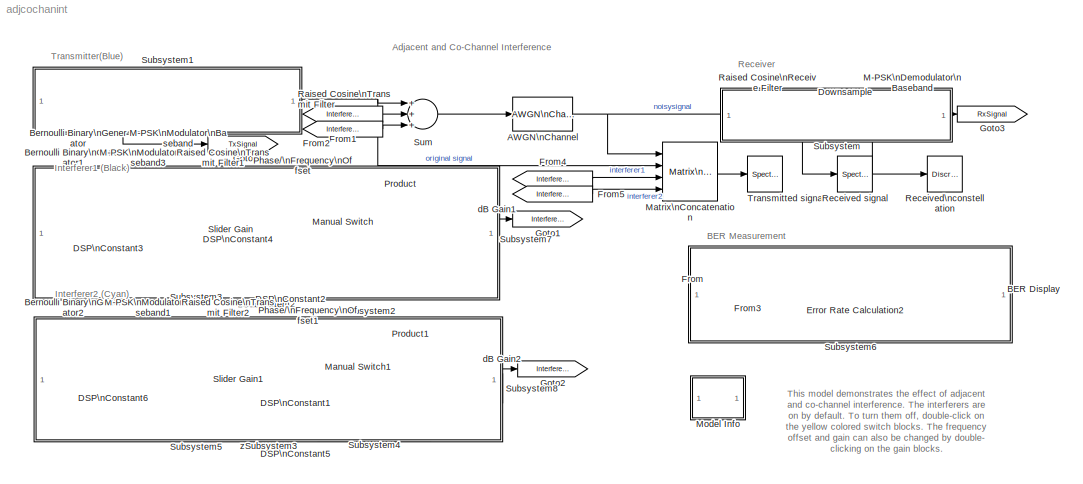
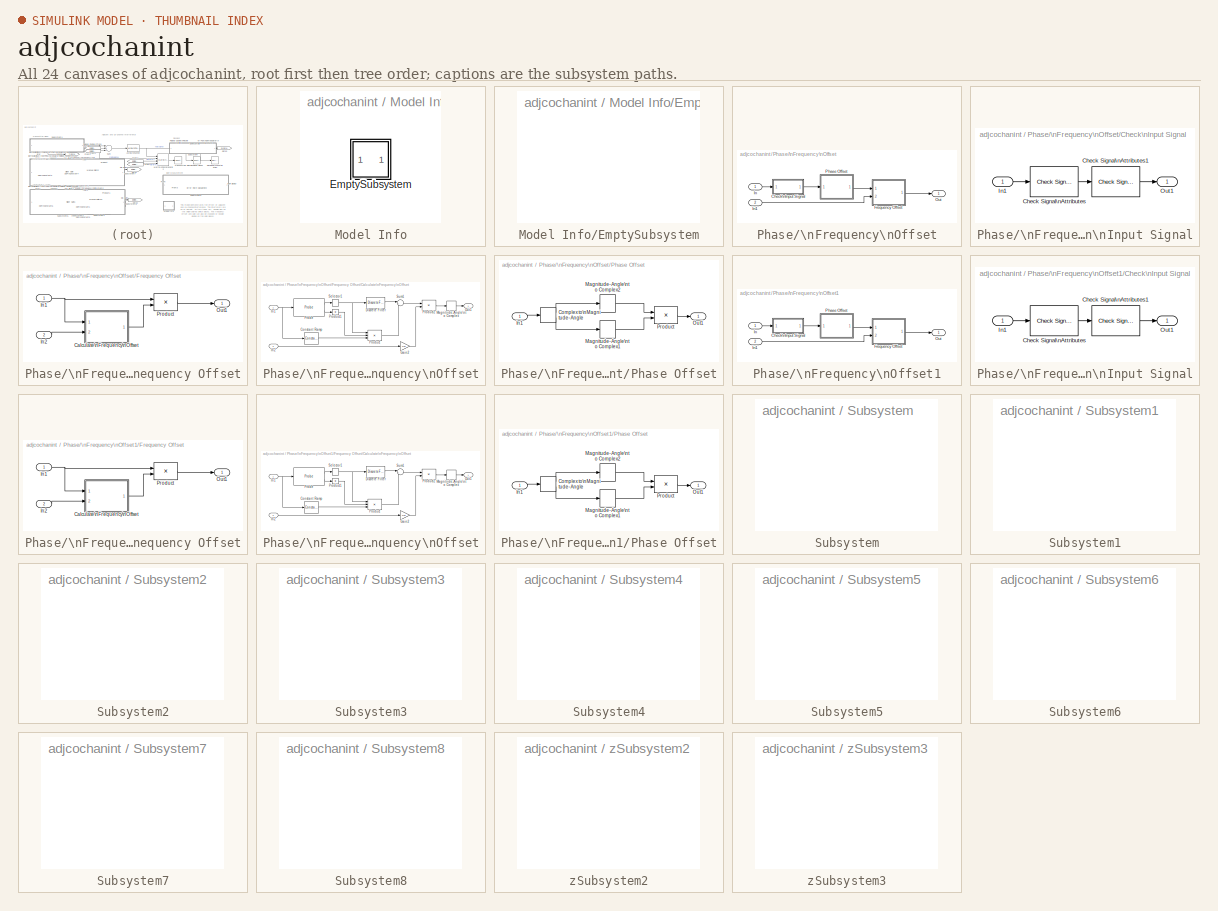
[diagram: thumbnail index - all 24 canvases of the model, root first then tree order]
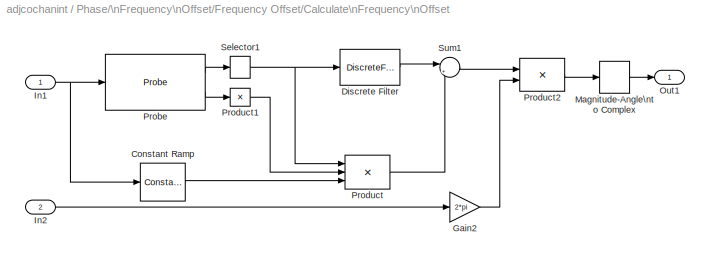
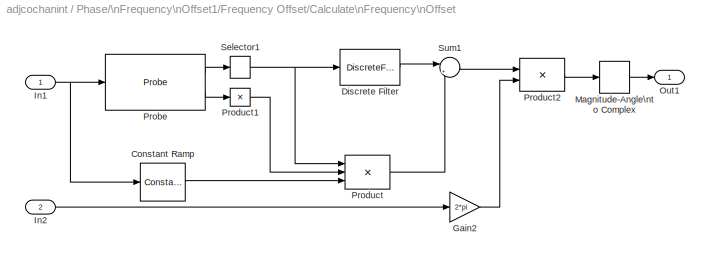
MODEL adjcochanint
KIND model
BLOCK [Reference] AWGN\nChannel  REF=commchan2/AWGN\nChannel
  EbNodB = 10
  EsNodB = 30
  Ports = [1, 1]
  Ps = 1/8
  SNRdB = 10
  ShowPortLabels = on
  SourceBlock = commchan2/AWGN\nChannel
  SourceType = AWGN Channel
  Tsym = 1e-6
  bitsPerSym = 1
  noiseMode = Signal to noise ratio  (Es/No)
  seed = 123456
  variance = 1
BLOCK [Display] BER Display
  Decimation = 1
  Ports = [1]
BLOCK [Reference] Bernoulli Binary\nGenerator  REF=commrandsrc2/Bernoulli Binary\nGenerator
  P = 0.5
  Ports = [0, 1]
  ShowPortLabels = on
  SourceBlock = commrandsrc2/Bernoulli Binary\nGenerator
  SourceType = Bernoulli Binary Generator
  Ts = 1e-6/3
  frameBased = on
  orient = off
  sampPerFrame = 300
  seed = 529558
BLOCK [Reference] Bernoulli Binary\nGenerator1  REF=commrandsrc2/Bernoulli Binary\nGenerator
  P = 0.5
  Ports = [0, 1]
  ShowPortLabels = on
  SourceBlock = commrandsrc2/Bernoulli Binary\nGenerator
  SourceType = Bernoulli Binary Generator
  Ts = 1e-6/3
  frameBased = on
  orient = off
  sampPerFrame = 300
  seed = 529573
BLOCK [Reference] Bernoulli Binary\nGenerator2  REF=commrandsrc2/Bernoulli Binary\nGenerator
  P = 0.5
  Ports = [0, 1]
  ShowPortLabels = on
  SourceBlock = commrandsrc2/Bernoulli Binary\nGenerator
  SourceType = Bernoulli Binary Generator
  Ts = 1e-6/3
  frameBased = on
  orient = off
  sampPerFrame = 300
  seed = 529397
BLOCK [Reference] DSP\nConstant1  REF=dspsrcs4/DSP\nConstant
  FramebasedOutput = -inf
  InterpretAs1D = -inf
  Ports = [0, 1]
  SampleMode = Discrete
  ShowPortLabels = on
  SourceBlock = dspsrcs4/DSP\nConstant
  SourceType = DSP Constant
  Ts = -inf
  Value = 0
  additionalParams = off
  allowOverrides = on
  continuousOutput = Sample-based
  dataType = Inherit from 'Constant value'
  discreteOutput = Frame-based
  fracBitsMode = Best precision
  framePeriod = (1e-6/3)*300
  isSigned = on
  numFracBits = 15
  sampTime = Tsym*300
  udDataType = sfix(16)
  wordLen = 16
BLOCK [Reference] DSP\nConstant2  REF=dspsrcs4/DSP\nConstant
  FramebasedOutput = -inf
  InterpretAs1D = -inf
  Ports = [0, 1]
  SampleMode = Discrete
  ShowPortLabels = on
  SourceBlock = dspsrcs4/DSP\nConstant
  SourceType = DSP Constant
  Ts = -inf
  Value = 1
  additionalParams = off
  allowOverrides = on
  continuousOutput = Sample-based
  dataType = Inherit from 'Constant value'
  discreteOutput = Frame-based
  fracBitsMode = Best precision
  framePeriod = (1e-6/3)*300
  isSigned = on
  numFracBits = 15
  sampTime = Tsym*300
  udDataType = sfix(16)
  wordLen = 16
BLOCK [Reference] DSP\nConstant3  REF=dspsrcs4/DSP\nConstant
  FramebasedOutput = -inf
  InterpretAs1D = -inf
  Ports = [0, 1]
  SampleMode = Discrete
  ShowPortLabels = on
  SourceBlock = dspsrcs4/DSP\nConstant
  SourceType = DSP Constant
  Ts = -inf
  Value = -4e6
  additionalParams = off
  allowOverrides = on
  continuousOutput = Sample-based
  dataType = Inherit from 'Constant value'
  discreteOutput = Frame-based
  fracBitsMode = Best precision
  framePeriod = (1e-6/3)*300
  isSigned = on
  numFracBits = 15
  sampTime = Tsym*100
  udDataType = sfix(16)
  wordLen = 16
BLOCK [Reference] DSP\nConstant4  REF=dspsrcs4/DSP\nConstant
  FramebasedOutput = -inf
  InterpretAs1D = -inf
  Ports = [0, 1]
  SampleMode = Discrete
  ShowPortLabels = on
  SourceBlock = dspsrcs4/DSP\nConstant
  SourceType = DSP Constant
  Ts = -inf
  Value = 0
  additionalParams = off
  allowOverrides = on
  continuousOutput = Sample-based
  dataType = Inherit from 'Constant value'
  discreteOutput = Frame-based
  fracBitsMode = Best precision
  framePeriod = (1e-6/3)*300
  isSigned = on
  numFracBits = 15
  sampTime = Tsym*300
  udDataType = sfix(16)
  wordLen = 16
BLOCK [Reference] DSP\nConstant5  REF=dspsrcs4/DSP\nConstant
  FramebasedOutput = -inf
  InterpretAs1D = -inf
  Ports = [0, 1]
  SampleMode = Discrete
  ShowPortLabels = on
  SourceBlock = dspsrcs4/DSP\nConstant
  SourceType = DSP Constant
  Ts = -inf
  Value = 1
  additionalParams = off
  allowOverrides = on
  continuousOutput = Sample-based
  dataType = Inherit from 'Constant value'
  discreteOutput = Frame-based
  fracBitsMode = Best precision
  framePeriod = (1e-6/3)*300
  isSigned = on
  numFracBits = 15
  sampTime = Tsym*300
  udDataType = sfix(16)
  wordLen = 16
BLOCK [Reference] DSP\nConstant6  REF=dspsrcs4/DSP\nConstant
  FramebasedOutput = -inf
  InterpretAs1D = -inf
  Ports = [0, 1]
  SampleMode = Discrete
  ShowPortLabels = on
  SourceBlock = dspsrcs4/DSP\nConstant
  SourceType = DSP Constant
  Ts = -inf
  Value = 4e6
  additionalParams = off
  allowOverrides = on
  continuousOutput = Sample-based
  dataType = Inherit from 'Constant value'
  discreteOutput = Frame-based
  fracBitsMode = Best precision
  framePeriod = (1e-6/3)*300
  isSigned = on
  numFracBits = 15
  sampTime = Tsym*300
  udDataType = sfix(16)
  wordLen = 16
BLOCK [Reference] Downsample  REF=dspsigops/Downsample
  N = 8
  Ports = [1, 1]
  SourceBlock = dspsigops/Downsample
  SourceType = Downsample
  fmode = Maintain input frame rate
  ic = 0
  phase = 0
  smode = Allow multirate
BLOCK [Reference] Error Rate Calculation2  REF=commsink2/Error Rate\nCalculation
  N = 12*3
  PMode = Port
  Ports = [2, 1]
  RsMode2 = off
  SourceBlock = commsink2/Error Rate\nCalculation
  SourceType = Error Rate Calculation
  WsName = e1
  cp_mode = Entire frame
  maxBits = 1e6
  numErr = 100
  st_delay = 0
  stop = off
  subframe = []
BLOCK [From] From
  CloseFcn = tagdialog Close
  DialogController = Simulink.DDGSource
  GotoTag = TxSignal
BLOCK [From] From1
  CloseFcn = tagdialog Close
  DialogController = Simulink.DDGSource
  GotoTag = Interferer1
BLOCK [From] From2
  CloseFcn = tagdialog Close
  DialogController = Simulink.DDGSource
  GotoTag = Interferer2
BLOCK [From] From3
  CloseFcn = tagdialog Close
  DialogController = Simulink.DDGSource
  GotoTag = RxSignal
BLOCK [From] From4
  CloseFcn = tagdialog Close
  DialogController = Simulink.DDGSource
  GotoTag = Interferer1
BLOCK [From] From5
  CloseFcn = tagdialog Close
  DialogController = Simulink.DDGSource
  GotoTag = Interferer2
BLOCK [Goto] Goto
  DialogController = Simulink.DDGSource
  GotoTag = TxSignal
  TagVisibility = local
BLOCK [Goto] Goto1
  DialogController = Simulink.DDGSource
  GotoTag = Interferer1
  TagVisibility = local
BLOCK [Goto] Goto2
  DialogController = Simulink.DDGSource
  GotoTag = Interferer2
  TagVisibility = local
BLOCK [Goto] Goto3
  DialogController = Simulink.DDGSource
  GotoTag = RxSignal
  TagVisibility = local
BLOCK [Reference] M-PSK\nDemodulator\nBaseband  REF=commdigbbndpm2/M-PSK\nDemodulator\nBaseband
  Dec = Gray
  M = 8
  OutType = Bit
  Ph = 0
  Ports = [1, 1]
  SourceBlock = commdigbbndpm2/M-PSK\nDemodulator\nBaseband
  SourceType = M-PSK Demodulator Baseband
  numSamp = 1
BLOCK [Reference] M-PSK\nModulator\nBaseband  REF=commdigbbndpm2/M-PSK\nModulator\nBaseband
  Enc = Gray
  InType = Bit
  M = 8
  Ph = 0
  Ports = [1, 1]
  SourceBlock = commdigbbndpm2/M-PSK\nModulator\nBaseband
  SourceType = M-PSK Modulator Baseband
  numSamp = 1
BLOCK [Reference] M-PSK\nModulator\nBaseband1  REF=commdigbbndpm2/M-PSK\nModulator\nBaseband
  Enc = Gray
  InType = Bit
  M = 8
  Ph = 0
  Ports = [1, 1]
  SourceBlock = commdigbbndpm2/M-PSK\nModulator\nBaseband
  SourceType = M-PSK Modulator Baseband
  numSamp = 1
BLOCK [Reference] M-PSK\nModulator\nBaseband3  REF=commdigbbndpm2/M-PSK\nModulator\nBaseband
  Enc = Gray
  InType = Bit
  M = 8
  Ph = 0
  Ports = [1, 1]
  SourceBlock = commdigbbndpm2/M-PSK\nModulator\nBaseband
  SourceType = M-PSK Modulator Baseband
  numSamp = 1
BLOCK [Reference] Manual Switch  REF=simulink/Signal\nRouting/Manual Switch
  Ports = [2, 1]
  ShowPortLabels = on
  SourceBlock = simulink/Signal\nRouting/Manual Switch
  SourceType = Manual Switch
  action = 0
  sw = 0
BLOCK [Reference] Manual Switch1  REF=simulink/Signal\nRouting/Manual Switch
  Ports = [2, 1]
  ShowPortLabels = on
  SourceBlock = simulink/Signal\nRouting/Manual Switch
  SourceType = Manual Switch
  action = 0
  sw = 0
BLOCK [Reference] Matrix\nConcatenation  REF=simulink/Math\nOperations/Matrix\nConcatenation
  Ports = [4, 1]
  SourceBlock = simulink/Math\nOperations/Matrix\nConcatenation
  SourceType = Matrix Concatenation
  catMethod = Horizontal
  numInports = 4
BLOCK [SubSystem] Model Info
  CopyFcn = slcm CopyBlock;
  DeleteFcn = slcm Cancel;
  InitFcn = slcm('UpdateAllCMBlocksInThisModelInit')
  LoadFcn = slcm LoadBlock;
  MaskCallbackString = ||||||||||||||||||||||||||||||
  MaskDescription = This block allows revision control information to be displayed within the model.
  MaskDisplay = text(str2num(LeftAlignmentValue), 0.5, MaskDisplayString, 'HorizontalAlignment', HorizontalTextAlignment)\n
  MaskEnableString = on,on,on,on,on,on,on,on,on,on,on,on,on,on,on,on,on,on,on,on,on,on,on,on,on,on,on,on,on,on,on
  MaskIconFrame = on
  MaskIconOpaque = on
  MaskIconRotate = none
  MaskIconUnits = normalized
  MaskPromptString = InitialSaveTempField|InitialBlockCM|BlockCM|Frame|SaveTempField|DisplayStringWithTags|MaskDisplayString|HorizontalTextAlignment|LeftAlignmentValue|SourceBlockDiagram|TagMaxNumber|CMTag1|CMTag2|CMTag3|CMTag4|CMTag5|CMTag6|CMTag7|CMTag8|CMTag9|CMTag10|CMTag11|CMTag12|CMTag13|CMTag14|CMTag15|CMTag16|CMTag17|CMTag18|CMTag19|CMTag20
  MaskSelfModifiable = on
  MaskStyleString = edit,edit,edit,edit,edit,edit,edit,edit,edit,edit,edit,edit,edit,edit,edit,edit,edit,edit,edit,edit,edit,edit,edit,edit,edit,edit,edit,edit,edit,edit,edit
  MaskTabNameString = ,,,,,,,,,,,,,,,,,,,,,,,,,,,,,,
  MaskToolTipString = on,on,on,on,on,on,on,on,on,on,on,on,on,on,on,on,on,on,on,on,on,on,on,on,on,on,on,on,on,on,on
  MaskTunableValueString = on,on,on,on,on,on,on,on,on,on,on,on,on,on,on,on,on,on,on,on,on,on,on,on,on,on,on,on,on,on,on
  MaskType = CMBlock
  MaskValueString = |none|none|on||Info|Info|Center|0.5|adjcochanint|20||||||||||||||||||||
  MaskVarAliasString = ,,,,,,,,,,,,,,,,,,,,,,,,,,,,,,
  MaskVariables = InitialSaveTempField=&1;InitialBlockCM=&2;BlockCM=&3;Frame=&4;SaveTempField=&5;DisplayStringWithTags=&6;MaskDisplayString=&7;HorizontalTextAlignment=&8;LeftAlignmentValue=&9;SourceBlockDiagram=&10;TagMaxNumber=@11;CMTag1=&12;CMTag2=&13;CMTag3=&14;CMTag4=&15;CMTag5=&16;CMTag6=&17;CMTag7=&18;CMTag8=&19;CMTag9=&20;CMTag10=&21;CMTag11=&22;CMTag12=&23;CMTag13=&24;CMTag14=&25;CMTag15=&26;CMTag16=&27;CMT...<+45ch>
  MaskVisibilityString = off,off,off,off,off,off,off,off,off,off,off,off,off,off,off,off,off,off,off,off,off,off,off,off,off,off,off,off,off,off,off
  MinAlgLoopOccurrences = off
  NameChangeFcn = slcm Rename;
  OpenFcn = commdemohelp;
  Ports = []
  PostSaveFcn = slcm('UpdateAllCMBlocksInThisModel')
  PropExecContextAcrossSSBoundary = on
  RTWSystemCode = Auto
  TreatAsAtomicUnit = off
BLOCK [SubSystem] Model Info/EmptySubsystem
  MinAlgLoopOccurrences = off
  Ports = []
  PropExecContextAcrossSSBoundary = on
  RTWSystemCode = Auto
  TreatAsAtomicUnit = off
BLOCK [SubSystem] Phase//\nFrequency\nOffset
  MaskDescription = Complex baseband model of residual phase and frequency offsets.
  MaskDisplay = disp('Phase/\\nFrequency\\nOffset');
  MaskEnableString = on
  MaskHelp = helpview(commbhelp)
  MaskIconFrame = on
  MaskIconOpaque = on
  MaskIconRotate = none
  MaskIconUnits = autoscale
  MaskPromptString = Phase offset (deg):
  MaskStyleString = edit
  MaskToolTipString = on
  MaskTunableValueString = on
  MaskType = Phase/Frequency Offset
  MaskValueString = 0
  MaskVariables = phaseOffset=@1;
  MaskVisibilityString = on
  MinAlgLoopOccurrences = off
  Ports = [2, 1]
  PropExecContextAcrossSSBoundary = on
  RTWSystemCode = Auto
  TreatAsAtomicUnit = off
BLOCK [SubSystem] Phase//\nFrequency\nOffset/Check\nInput Signal
  MaskDisplay = disp('Check\\nInput Signal');
  MaskIconFrame = on
  MaskIconOpaque = on
  MaskIconRotate = none
  MaskIconUnits = autoscale
  MinAlgLoopOccurrences = off
  Ports = [1, 1]
  PropExecContextAcrossSSBoundary = on
  RTWSystemCode = Auto
  TreatAsAtomicUnit = off
BLOCK [Reference] Phase//\nFrequency\nOffset/Check\nInput Signal/Check Signal\nAttributes  REF=dspsigattribs/Check Signal\nAttributes
  Complexity = Complex
  DatatypeCheckMethod = Ignore
  DatatypeGeneral = Boolean
  Dimensions = Column vector (2-D) or scalar
  DimsCheckMethod = Is...
  DtypeFixedSpecific = Any fixed-point
  DtypeFloatSpecific = Any floating-point
  DtypeIntSpecific = Any integer
  Frame = Ignore
  Ports = [1, 1]
  SampleMode = Ignore
  ShowPortLabels = on
  SigAttribCheckMethod = Does not match attributes exactly
  SourceBlock = dspsigattribs/Check Signal\nAttributes
  SourceType = Check Signal Attributes
BLOCK [Reference] Phase//\nFrequency\nOffset/Check\nInput Signal/Check Signal\nAttributes1  REF=dspsigattribs/Check Signal\nAttributes
  Complexity = Ignore
  DatatypeCheckMethod = Ignore
  DatatypeGeneral = Boolean
  Dimensions = Vector (1-D or 2-D)
  DimsCheckMethod = Is...
  DtypeFixedSpecific = Any fixed-point
  DtypeFloatSpecific = Any floating-point
  DtypeIntSpecific = Any integer
  Frame = Sample-based
  Ports = [1, 1]
  SampleMode = Ignore
  ShowPortLabels = on
  SigAttribCheckMethod = Matches attributes exactly
  SourceBlock = dspsigattribs/Check Signal\nAttributes
  SourceType = Check Signal Attributes
BLOCK [Inport] Phase//\nFrequency\nOffset/Check\nInput Signal/In1
  IconDisplay = Port number
  LatchInput = off
BLOCK [Outport] Phase//\nFrequency\nOffset/Check\nInput Signal/Out1
  BusOutputAsStruct = off
  IconDisplay = Port number
BLOCK [SubSystem] Phase//\nFrequency\nOffset/Frequency Offset
  MaskDisplay = disp('Frequency\\nOffset');
  MaskIconFrame = on
  MaskIconOpaque = on
  MaskIconRotate = none
  MaskIconUnits = autoscale
  MinAlgLoopOccurrences = off
  Ports = [2, 1]
  PropExecContextAcrossSSBoundary = on
  RTWSystemCode = Auto
  TreatAsAtomicUnit = off
BLOCK [SubSystem] Phase//\nFrequency\nOffset/Frequency Offset/Calculate\nFrequency\nOffset
  MaskDisplay = disp('Calculate\\nFrequency\\nOffset');
  MaskIconFrame = on
  MaskIconOpaque = on
  MaskIconRotate = none
  MaskIconUnits = autoscale
  MinAlgLoopOccurrences = off
  Ports = [2, 1]
  PropExecContextAcrossSSBoundary = on
  RTWSystemCode = Auto
  TreatAsAtomicUnit = off
BLOCK [Reference] Phase//\nFrequency\nOffset/Frequency Offset/Calculate\nFrequency\nOffset/Constant Ramp  REF=dspsrcs4/Constant Ramp
  L = Rows
  Offset = 0
  Ports = [1, 1]
  Slope = 1
  SourceBlock = dspsrcs4/Constant Ramp
  SourceType = Constant Ramp
  additionalParams = off
  allowOverrides = on
  dataType = Same as input
  fracBitsMode = Best precision
  numFracBits = 15
  udDataType = sfix(16)
  wordLen = 16
BLOCK [DiscreteFilter] Phase//\nFrequency\nOffset/Frequency Offset/Calculate\nFrequency\nOffset/Discrete Filter
  Denominator = [1 -1]
  Numerator = [0 1]
  SampleTime = -1
BLOCK [Gain] Phase//\nFrequency\nOffset/Frequency Offset/Calculate\nFrequency\nOffset/Gain2
  Gain = 2*pi
BLOCK [Inport] Phase//\nFrequency\nOffset/Frequency Offset/Calculate\nFrequency\nOffset/In1
  IconDisplay = Port number
  LatchInput = off
BLOCK [Inport] Phase//\nFrequency\nOffset/Frequency Offset/Calculate\nFrequency\nOffset/In2
  IconDisplay = Port number
  LatchInput = off
  Port = 2
BLOCK [MagnitudeAngleToComplex] Phase//\nFrequency\nOffset/Frequency Offset/Calculate\nFrequency\nOffset/Magnitude-Angle\nto Complex
  ConstantPart = 1
  Input = Angle
  Ports = [1, 1]
BLOCK [Outport] Phase//\nFrequency\nOffset/Frequency Offset/Calculate\nFrequency\nOffset/Out1
  BusOutputAsStruct = off
  IconDisplay = Port number
BLOCK [Probe] Phase//\nFrequency\nOffset/Frequency Offset/Calculate\nFrequency\nOffset/Probe
  Ports = [1, 2]
  ProbeComplexSignal = off
  ProbeSignalDimensions = on
  ProbeWidth = off
BLOCK [Product] Phase//\nFrequency\nOffset/Frequency Offset/Calculate\nFrequency\nOffset/Product
  Inputs = */*
  Ports = [3, 1]
  RndMeth = Floor
BLOCK [Product] Phase//\nFrequency\nOffset/Frequency Offset/Calculate\nFrequency\nOffset/Product1
  Inputs = 1
  Ports = [1, 1]
  RndMeth = Floor
BLOCK [Product] Phase//\nFrequency\nOffset/Frequency Offset/Calculate\nFrequency\nOffset/Product2
  InputSameDT = off
  Ports = [2, 1]
  RndMeth = Floor
BLOCK [Selector] Phase//\nFrequency\nOffset/Frequency Offset/Calculate\nFrequency\nOffset/Selector1
  Elements = [1 ]
  InputPortWidth = 2
  Ports = [1, 1]
BLOCK [Sum] Phase//\nFrequency\nOffset/Frequency Offset/Calculate\nFrequency\nOffset/Sum1
  IconShape = round
  Inputs = |++
  Ports = [2, 1]
BLOCK [Inport] Phase//\nFrequency\nOffset/Frequency Offset/In1
  IconDisplay = Port number
  LatchInput = off
BLOCK [Inport] Phase//\nFrequency\nOffset/Frequency Offset/In2
  IconDisplay = Port number
  LatchInput = off
  Port = 2
BLOCK [Outport] Phase//\nFrequency\nOffset/Frequency Offset/Out1
  BusOutputAsStruct = off
  IconDisplay = Port number
BLOCK [Product] Phase//\nFrequency\nOffset/Frequency Offset/Product
  Ports = [2, 1]
  RndMeth = Floor
BLOCK [Inport] Phase//\nFrequency\nOffset/In
  IconDisplay = Port number
  LatchInput = off
BLOCK [Inport] Phase//\nFrequency\nOffset/In1
  IconDisplay = Port number
  LatchInput = off
  Port = 2
BLOCK [Outport] Phase//\nFrequency\nOffset/Out
  BusOutputAsStruct = off
  IconDisplay = Port number
BLOCK [SubSystem] Phase//\nFrequency\nOffset/Phase Offset
  MaskDisplay = disp('Phase\\nOffset');
  MaskIconFrame = on
  MaskIconOpaque = on
  MaskIconRotate = none
  MaskIconUnits = autoscale
  MinAlgLoopOccurrences = off
  Ports = [1, 1]
  PropExecContextAcrossSSBoundary = on
  RTWSystemCode = Auto
  TreatAsAtomicUnit = off
BLOCK [ComplexToMagnitudeAngle] Phase//\nFrequency\nOffset/Phase Offset/Complex to\nMagnitude-Angle
  Output = Magnitude and angle
  Ports = [1, 2]
BLOCK [Inport] Phase//\nFrequency\nOffset/Phase Offset/In1
  IconDisplay = Port number
  LatchInput = off
BLOCK [MagnitudeAngleToComplex] Phase//\nFrequency\nOffset/Phase Offset/Magnitude-Angle\nto Complex1
  ConstantPart = 1
  Input = Angle
  Ports = [1, 1]
BLOCK [MagnitudeAngleToComplex] Phase//\nFrequency\nOffset/Phase Offset/Magnitude-Angle\nto Complex2
  ConstantPart = phaseOffset*pi/180
  Input = Magnitude
  Ports = [1, 1]
BLOCK [Outport] Phase//\nFrequency\nOffset/Phase Offset/Out1
  BusOutputAsStruct = off
  IconDisplay = Port number
BLOCK [Product] Phase//\nFrequency\nOffset/Phase Offset/Product
  Ports = [2, 1]
  RndMeth = Floor
BLOCK [SubSystem] Phase//\nFrequency\nOffset1
  MaskDescription = Complex baseband model of residual phase and frequency offsets.
  MaskDisplay = disp('Phase/\\nFrequency\\nOffset');
  MaskEnableString = on
  MaskHelp = helpview(commbhelp)
  MaskIconFrame = on
  MaskIconOpaque = on
  MaskIconRotate = none
  MaskIconUnits = autoscale
  MaskPromptString = Phase offset (deg):
  MaskStyleString = edit
  MaskToolTipString = on
  MaskTunableValueString = on
  MaskType = Phase/Frequency Offset
  MaskValueString = 0
  MaskVariables = phaseOffset=@1;
  MaskVisibilityString = on
  MinAlgLoopOccurrences = off
  Ports = [2, 1]
  PropExecContextAcrossSSBoundary = on
  RTWSystemCode = Auto
  TreatAsAtomicUnit = off
BLOCK [SubSystem] Phase//\nFrequency\nOffset1/Check\nInput Signal
  MaskDisplay = disp('Check\\nInput Signal');
  MaskIconFrame = on
  MaskIconOpaque = on
  MaskIconRotate = none
  MaskIconUnits = autoscale
  MinAlgLoopOccurrences = off
  Ports = [1, 1]
  PropExecContextAcrossSSBoundary = on
  RTWSystemCode = Auto
  TreatAsAtomicUnit = off
BLOCK [Reference] Phase//\nFrequency\nOffset1/Check\nInput Signal/Check Signal\nAttributes  REF=dspsigattribs/Check Signal\nAttributes
  Complexity = Complex
  DatatypeCheckMethod = Ignore
  DatatypeGeneral = Boolean
  Dimensions = Column vector (2-D) or scalar
  DimsCheckMethod = Is...
  DtypeFixedSpecific = Any fixed-point
  DtypeFloatSpecific = Any floating-point
  DtypeIntSpecific = Any integer
  Frame = Ignore
  Ports = [1, 1]
  SampleMode = Ignore
  ShowPortLabels = on
  SigAttribCheckMethod = Does not match attributes exactly
  SourceBlock = dspsigattribs/Check Signal\nAttributes
  SourceType = Check Signal Attributes
BLOCK [Reference] Phase//\nFrequency\nOffset1/Check\nInput Signal/Check Signal\nAttributes1  REF=dspsigattribs/Check Signal\nAttributes
  Complexity = Ignore
  DatatypeCheckMethod = Ignore
  DatatypeGeneral = Boolean
  Dimensions = Vector (1-D or 2-D)
  DimsCheckMethod = Is...
  DtypeFixedSpecific = Any fixed-point
  DtypeFloatSpecific = Any floating-point
  DtypeIntSpecific = Any integer
  Frame = Sample-based
  Ports = [1, 1]
  SampleMode = Ignore
  ShowPortLabels = on
  SigAttribCheckMethod = Matches attributes exactly
  SourceBlock = dspsigattribs/Check Signal\nAttributes
  SourceType = Check Signal Attributes
BLOCK [Inport] Phase//\nFrequency\nOffset1/Check\nInput Signal/In1
  IconDisplay = Port number
  LatchInput = off
BLOCK [Outport] Phase//\nFrequency\nOffset1/Check\nInput Signal/Out1
  BusOutputAsStruct = off
  IconDisplay = Port number
BLOCK [SubSystem] Phase//\nFrequency\nOffset1/Frequency Offset
  MaskDisplay = disp('Frequency\\nOffset');
  MaskIconFrame = on
  MaskIconOpaque = on
  MaskIconRotate = none
  MaskIconUnits = autoscale
  MinAlgLoopOccurrences = off
  Ports = [2, 1]
  PropExecContextAcrossSSBoundary = on
  RTWSystemCode = Auto
  TreatAsAtomicUnit = off
BLOCK [SubSystem] Phase//\nFrequency\nOffset1/Frequency Offset/Calculate\nFrequency\nOffset
  MaskDisplay = disp('Calculate\\nFrequency\\nOffset');
  MaskIconFrame = on
  MaskIconOpaque = on
  MaskIconRotate = none
  MaskIconUnits = autoscale
  MinAlgLoopOccurrences = off
  Ports = [2, 1]
  PropExecContextAcrossSSBoundary = on
  RTWSystemCode = Auto
  TreatAsAtomicUnit = off
BLOCK [Reference] Phase//\nFrequency\nOffset1/Frequency Offset/Calculate\nFrequency\nOffset/Constant Ramp  REF=dspsrcs4/Constant Ramp
  L = Rows
  Offset = 0
  Ports = [1, 1]
  Slope = 1
  SourceBlock = dspsrcs4/Constant Ramp
  SourceType = Constant Ramp
  additionalParams = off
  allowOverrides = on
  dataType = Same as input
  fracBitsMode = Best precision
  numFracBits = 15
  udDataType = sfix(16)
  wordLen = 16
BLOCK [DiscreteFilter] Phase//\nFrequency\nOffset1/Frequency Offset/Calculate\nFrequency\nOffset/Discrete Filter
  Denominator = [1 -1]
  Numerator = [0 1]
  SampleTime = -1
BLOCK [Gain] Phase//\nFrequency\nOffset1/Frequency Offset/Calculate\nFrequency\nOffset/Gain2
  Gain = 2*pi
BLOCK [Inport] Phase//\nFrequency\nOffset1/Frequency Offset/Calculate\nFrequency\nOffset/In1
  IconDisplay = Port number
  LatchInput = off
BLOCK [Inport] Phase//\nFrequency\nOffset1/Frequency Offset/Calculate\nFrequency\nOffset/In2
  IconDisplay = Port number
  LatchInput = off
  Port = 2
BLOCK [MagnitudeAngleToComplex] Phase//\nFrequency\nOffset1/Frequency Offset/Calculate\nFrequency\nOffset/Magnitude-Angle\nto Complex
  ConstantPart = 1
  Input = Angle
  Ports = [1, 1]
BLOCK [Outport] Phase//\nFrequency\nOffset1/Frequency Offset/Calculate\nFrequency\nOffset/Out1
  BusOutputAsStruct = off
  IconDisplay = Port number
BLOCK [Probe] Phase//\nFrequency\nOffset1/Frequency Offset/Calculate\nFrequency\nOffset/Probe
  Ports = [1, 2]
  ProbeComplexSignal = off
  ProbeSignalDimensions = on
  ProbeWidth = off
BLOCK [Product] Phase//\nFrequency\nOffset1/Frequency Offset/Calculate\nFrequency\nOffset/Product
  Inputs = */*
  Ports = [3, 1]
  RndMeth = Floor
BLOCK [Product] Phase//\nFrequency\nOffset1/Frequency Offset/Calculate\nFrequency\nOffset/Product1
  Inputs = 1
  Ports = [1, 1]
  RndMeth = Floor
BLOCK [Product] Phase//\nFrequency\nOffset1/Frequency Offset/Calculate\nFrequency\nOffset/Product2
  InputSameDT = off
  Ports = [2, 1]
  RndMeth = Floor
BLOCK [Selector] Phase//\nFrequency\nOffset1/Frequency Offset/Calculate\nFrequency\nOffset/Selector1
  Elements = [1 ]
  InputPortWidth = 2
  Ports = [1, 1]
BLOCK [Sum] Phase//\nFrequency\nOffset1/Frequency Offset/Calculate\nFrequency\nOffset/Sum1
  IconShape = round
  Inputs = |++
  Ports = [2, 1]
BLOCK [Inport] Phase//\nFrequency\nOffset1/Frequency Offset/In1
  IconDisplay = Port number
  LatchInput = off
BLOCK [Inport] Phase//\nFrequency\nOffset1/Frequency Offset/In2
  IconDisplay = Port number
  LatchInput = off
  Port = 2
BLOCK [Outport] Phase//\nFrequency\nOffset1/Frequency Offset/Out1
  BusOutputAsStruct = off
  IconDisplay = Port number
BLOCK [Product] Phase//\nFrequency\nOffset1/Frequency Offset/Product
  Ports = [2, 1]
  RndMeth = Floor
BLOCK [Inport] Phase//\nFrequency\nOffset1/In
  IconDisplay = Port number
  LatchInput = off
BLOCK [Inport] Phase//\nFrequency\nOffset1/In1
  IconDisplay = Port number
  LatchInput = off
  Port = 2
BLOCK [Outport] Phase//\nFrequency\nOffset1/Out
  BusOutputAsStruct = off
  IconDisplay = Port number
BLOCK [SubSystem] Phase//\nFrequency\nOffset1/Phase Offset
  MaskDisplay = disp('Phase\\nOffset');
  MaskIconFrame = on
  MaskIconOpaque = on
  MaskIconRotate = none
  MaskIconUnits = autoscale
  MinAlgLoopOccurrences = off
  Ports = [1, 1]
  PropExecContextAcrossSSBoundary = on
  RTWSystemCode = Auto
  TreatAsAtomicUnit = off
BLOCK [ComplexToMagnitudeAngle] Phase//\nFrequency\nOffset1/Phase Offset/Complex to\nMagnitude-Angle
  Output = Magnitude and angle
  Ports = [1, 2]
BLOCK [Inport] Phase//\nFrequency\nOffset1/Phase Offset/In1
  IconDisplay = Port number
  LatchInput = off
BLOCK [MagnitudeAngleToComplex] Phase//\nFrequency\nOffset1/Phase Offset/Magnitude-Angle\nto Complex1
  ConstantPart = 1
  Input = Angle
  Ports = [1, 1]
BLOCK [MagnitudeAngleToComplex] Phase//\nFrequency\nOffset1/Phase Offset/Magnitude-Angle\nto Complex2
  ConstantPart = phaseOffset*pi/180
  Input = Magnitude
  Ports = [1, 1]
BLOCK [Outport] Phase//\nFrequency\nOffset1/Phase Offset/Out1
  BusOutputAsStruct = off
  IconDisplay = Port number
BLOCK [Product] Phase//\nFrequency\nOffset1/Phase Offset/Product
  Ports = [2, 1]
  RndMeth = Floor
BLOCK [Product] Product
  InputSameDT = off
  Ports = [2, 1]
  RndMeth = Floor
BLOCK [Product] Product1
  InputSameDT = off
  Ports = [2, 1]
  RndMeth = Floor
BLOCK [Reference] Raised Cosine\nReceive Filter  REF=commfilt2/Raised Cosine\nReceive Filter
  D = 6
  N = 8
  Ports = [1, 1]
  R = 0.22
  ShowPortLabels = on
  SourceBlock = commfilt2/Raised Cosine\nReceive Filter
  SourceType = Raised Cosine Receive Filter
  checkCoeff = off
  checkGain = Normalized
  downFactor = 1
  downOffset = 0
  filtType = Square root
  filterGain = 1
  launchFVT = off
  rateMode = None
  sampMode = Frame-based
  variableName = rcRxFilt
BLOCK [Reference] Raised Cosine\nTransmit Filter  REF=commfilt2/Raised Cosine\nTransmit Filter
  D = 6
  N = 8
  Ports = [1, 1]
  R = 0.22
  ShowPortLabels = on
  SourceBlock = commfilt2/Raised Cosine\nTransmit Filter
  SourceType = Raised Cosine Transmit Filter
  checkCoeff = off
  checkGain = Normalized
  filtType = Square root
  filterGain = 1
  launchFVT = off
  sampMode = Frame-based
  variableName = rcTxFilt
BLOCK [Reference] Raised Cosine\nTransmit Filter1  REF=commfilt2/Raised Cosine\nTransmit Filter
  D = 6
  N = 8
  Ports = [1, 1]
  R = 0.22
  ShowPortLabels = on
  SourceBlock = commfilt2/Raised Cosine\nTransmit Filter
  SourceType = Raised Cosine Transmit Filter
  checkCoeff = off
  checkGain = Normalized
  filtType = Square root
  filterGain = 1
  launchFVT = off
  sampMode = Frame-based
  variableName = rcTxFilt1
BLOCK [Reference] Raised Cosine\nTransmit Filter2  REF=commfilt2/Raised Cosine\nTransmit Filter
  D = 6
  N = 8
  Ports = [1, 1]
  R = 0.22
  ShowPortLabels = on
  SourceBlock = commfilt2/Raised Cosine\nTransmit Filter
  SourceType = Raised Cosine Transmit Filter
  checkCoeff = off
  checkGain = Normalized
  filtType = Square root
  filterGain = 1
  launchFVT = off
  sampMode = Frame-based
  variableName = rcTxFilt2
BLOCK [Reference] Received signal  REF=dspsnks4/Spectrum\nScope
  AxisGrid = on
  AxisLegend = off
  AxisProperties = off
  AxisZoom = off
  BufferSize = 128
  DisplayProperties = on
  Domain = Frequency
  FFTlength = 128
  FigPos = [381 47 357 145]
  FrameNumber = off
  HorizSpan = 1
  InheritXIncr = on
  LineColors = [1 0 0]|[0 0 1]
  LineProperties = off
  Memory = off
  OpenScopeAtSimStart = on
  OpenScopeImmediately = off
  Overlap = 64
  Ports = [1]
  ScopeProperties = off
  ShowPortLabels = off
  SourceBlock = dspsnks4/Spectrum\nScope
  SourceType = Spectrum Scope
  UseBuffer = on
  XIncr = 1.0
  XLabel = Samples
  XRange = [-Fs/2...Fs/2]
  XUnits = Hertz
  YLabel = Magnitude, dB
  YMax = 19.7294255518364
  YMin = -95.9893424566119
  YUnits = dB
  inpFftLenInherit = off
  numAvg = 10
BLOCK [Reference] Received\nconstellation  REF=commsink2/Discrete-Time\nScatter Plot\nScope
  AxisGrid = on
  FigPos = [788 34 211 211]
  FrameNumber = off
  LineColors = b
  LineMarkers = .
  Ports = [1]
  ShowPortLabels = on
  SourceBlock = commsink2/Discrete-Time\nScatter Plot\nScope
  SourceType = Discrete-Time Scatter Plot Scope
  Tag = ScatterPlot
  block_type_ = scatter
  fading = on
  figTitle = Scatter Plot
  inphaseLabel = In-phase Amplitude
  numLinesMax = 8
  numNewFrames = 100
  numTraces = 400
  offsetEye = 0
  openScopeAtSimStart = on
  quadratureLabel = Quadrature Amplitude
  render = on
  sampPerSymb = 1
  xMax = 2.52514227621423
  xMin = -2.4831480177732
  yMax = 2.53569168167027
  yMin = -2.47259861231716
BLOCK [Reference] Slider Gain  REF=simulink/Math\nOperations/Slider\nGain
  Ports = [1, 1]
  ShowPortLabels = on
  SourceBlock = simulink/Math\nOperations/Slider\nGain
  SourceType = Slider Gain
  gain = 1
  high = 2
  low = 0
BLOCK [Reference] Slider Gain1  REF=simulink/Math\nOperations/Slider\nGain
  Ports = [1, 1]
  ShowPortLabels = on
  SourceBlock = simulink/Math\nOperations/Slider\nGain
  SourceType = Slider Gain
  gain = 1.4
  high = 2
  low = 0
BLOCK [SubSystem] Subsystem
  MaskDisplay = disp('');
  MaskIconFrame = on
  MaskIconOpaque = on
  MaskIconRotate = none
  MaskIconUnits = autoscale
  MinAlgLoopOccurrences = off
  Ports = []
  PropExecContextAcrossSSBoundary = on
  RTWSystemCode = Auto
  TreatAsAtomicUnit = off
BLOCK [SubSystem] Subsystem1
  MaskDisplay = disp('');
  MaskIconFrame = on
  MaskIconOpaque = on
  MaskIconRotate = none
  MaskIconUnits = autoscale
  MinAlgLoopOccurrences = off
  Ports = []
  PropExecContextAcrossSSBoundary = on
  RTWSystemCode = Auto
  TreatAsAtomicUnit = off
BLOCK [SubSystem] Subsystem2
  MaskDisplay = disp('Double-click above\\n to activate Interferer1');
  MaskIconFrame = on
  MaskIconOpaque = on
  MaskIconRotate = none
  MaskIconUnits = autoscale
  MinAlgLoopOccurrences = off
  Ports = []
  PropExecContextAcrossSSBoundary = on
  RTWSystemCode = Auto
  TreatAsAtomicUnit = off
BLOCK [SubSystem] Subsystem3
  MaskDisplay = disp('Double-click above\\n to change frequency offset');
  MaskIconFrame = on
  MaskIconOpaque = on
  MaskIconRotate = none
  MaskIconUnits = autoscale
  MinAlgLoopOccurrences = off
  Ports = []
  PropExecContextAcrossSSBoundary = on
  RTWSystemCode = Auto
  TreatAsAtomicUnit = off
BLOCK [SubSystem] Subsystem4
  MaskDisplay = disp('Double-click above\\n to activate Interferer2');
  MaskIconFrame = on
  MaskIconOpaque = on
  MaskIconRotate = none
  MaskIconUnits = autoscale
  MinAlgLoopOccurrences = off
  Ports = []
  PropExecContextAcrossSSBoundary = on
  RTWSystemCode = Auto
  TreatAsAtomicUnit = off
BLOCK [SubSystem] Subsystem5
  MaskDisplay = disp('Double-click above\\n to change frequency offset');
  MaskIconFrame = on
  MaskIconOpaque = on
  MaskIconRotate = none
  MaskIconUnits = autoscale
  MinAlgLoopOccurrences = off
  Ports = []
  PropExecContextAcrossSSBoundary = on
  RTWSystemCode = Auto
  TreatAsAtomicUnit = off
BLOCK [SubSystem] Subsystem6
  MaskDisplay = disp('');
  MaskIconFrame = on
  MaskIconOpaque = on
  MaskIconRotate = none
  MaskIconUnits = autoscale
  MinAlgLoopOccurrences = off
  Ports = []
  PropExecContextAcrossSSBoundary = on
  RTWSystemCode = Auto
  TreatAsAtomicUnit = off
BLOCK [SubSystem] Subsystem7
  MaskDisplay = disp('Double-click above\\n to change gain');
  MaskIconFrame = on
  MaskIconOpaque = on
  MaskIconRotate = none
  MaskIconUnits = autoscale
  MinAlgLoopOccurrences = off
  Ports = []
  PropExecContextAcrossSSBoundary = on
  RTWSystemCode = Auto
  TreatAsAtomicUnit = off
BLOCK [SubSystem] Subsystem8
  MaskDisplay = disp('Double-click above\\n to change gain');
  MaskIconFrame = on
  MaskIconOpaque = on
  MaskIconRotate = none
  MaskIconUnits = autoscale
  MinAlgLoopOccurrences = off
  Ports = []
  PropExecContextAcrossSSBoundary = on
  RTWSystemCode = Auto
  TreatAsAtomicUnit = off
BLOCK [Sum] Sum
  InputSameDT = off
  Inputs = +++
  OutDataTypeMode = Inherit via internal rule
  Ports = [3, 1]
BLOCK [Reference] Transmitted signal  REF=dspsnks4/Spectrum\nScope
  AxisGrid = on
  AxisLegend = off
  AxisProperties = off
  AxisZoom = off
  BufferSize = 128
  DisplayProperties = on
  Domain = Frequency
  FFTlength = 128
  FigPos = [10 47 357 145]
  FrameNumber = off
  HorizSpan = 1
  InheritXIncr = on
  LineColors = [1 0 0]|[0 0 1]|[0 0 0]|[0 1 1]
  LineProperties = off
  Memory = off
  OpenScopeAtSimStart = on
  OpenScopeImmediately = off
  Overlap = 64
  Ports = [1]
  ScopeProperties = off
  ShowPortLabels = off
  SourceBlock = dspsnks4/Spectrum\nScope
  SourceType = Spectrum Scope
  UseBuffer = on
  XIncr = 1.0
  XLabel = Samples
  XRange = [-Fs/2...Fs/2]
  XUnits = Hertz
  YLabel = Magnitude, dB
  YMax = 10.0230122396749
  YMin = -91.8082302358486
  YUnits = dB
  inpFftLenInherit = off
  numAvg = 10
BLOCK [Reference] dB Gain1  REF=dspmathops/dB Gain
  Ports = [1, 1]
  ShowPortLabels = on
  SourceBlock = dspmathops/dB Gain
  SourceType = dB Gain
  dB = -20
  intype = Amplitude
BLOCK [Reference] dB Gain2  REF=dspmathops/dB Gain
  Ports = [1, 1]
  ShowPortLabels = on
  SourceBlock = dspmathops/dB Gain
  SourceType = dB Gain
  dB = -10
  intype = Amplitude
BLOCK [SubSystem] zSubsystem2
  MaskDisplay = disp('');
  MaskIconFrame = on
  MaskIconOpaque = on
  MaskIconRotate = none
  MaskIconUnits = autoscale
  MinAlgLoopOccurrences = off
  Ports = []
  PropExecContextAcrossSSBoundary = on
  RTWSystemCode = Auto
  TreatAsAtomicUnit = off
BLOCK [SubSystem] zSubsystem3
  MaskDisplay = disp('');
  MaskIconFrame = on
  MaskIconOpaque = on
  MaskIconRotate = none
  MaskIconUnits = autoscale
  MinAlgLoopOccurrences = off
  Ports = []
  PropExecContextAcrossSSBoundary = on
  RTWSystemCode = Auto
  TreatAsAtomicUnit = off
ANNOTATION (root): Adjacent and Co-Channel Interference
ANNOTATION (root): BER Measurement
ANNOTATION (root): Interferer1 (Black)
ANNOTATION (root): Interferer2 (Cyan)
ANNOTATION (root): Receiver
ANNOTATION (root): This model demonstrates the effect of adjacent\nand co-channel interference. The interferers are\non by default. To turn them off, double-click on\nthe yellow colored switch blocks. The frequency \noffset and gain can also be changed by double-\nclicking on the gain blocks.
ANNOTATION (root): Transmitter(Blue)
NET AWGN\nChannel:1 -> Matrix\nConcatenation:1, Raised Cosine\nReceive Filter:1
LINE Bernoulli Binary\nGenerator1:1 -> M-PSK\nModulator\nBaseband3:1
LINE Bernoulli Binary\nGenerator2:1 -> M-PSK\nModulator\nBaseband1:1
NET Bernoulli Binary\nGenerator:1 -> Goto:1, M-PSK\nModulator\nBaseband:1
LINE DSP\nConstant1:1 -> Manual Switch1:1
LINE DSP\nConstant2:1 -> Manual Switch:2
LINE DSP\nConstant3:1 -> Slider Gain:1
LINE DSP\nConstant4:1 -> Manual Switch:1
LINE DSP\nConstant5:1 -> Manual Switch1:2
LINE DSP\nConstant6:1 -> Slider Gain1:1
NET Downsample:1 -> M-PSK\nDemodulator\nBaseband:1, Received\nconstellation:1
LINE Error Rate Calculation2:1 -> BER Display:1
LINE From1:1 -> Sum:2
LINE From2:1 -> Sum:3
LINE From3:1 -> Error Rate Calculation2:2
LINE From4:1 -> Matrix\nConcatenation:3
LINE From5:1 -> Matrix\nConcatenation:4
LINE From:1 -> Error Rate Calculation2:1
LINE M-PSK\nDemodulator\nBaseband:1 -> Goto3:1
LINE M-PSK\nModulator\nBaseband1:1 -> Raised Cosine\nTransmit Filter2:1
LINE M-PSK\nModulator\nBaseband3:1 -> Raised Cosine\nTransmit Filter1:1
LINE M-PSK\nModulator\nBaseband:1 -> Raised Cosine\nTransmit Filter:1
LINE Manual Switch1:1 -> Product1:2
LINE Manual Switch:1 -> Product:2
LINE Matrix\nConcatenation:1 -> Transmitted signal:1
LINE Phase//\nFrequency\nOffset/Check\nInput Signal/Check Signal\nAttributes1:1 -> Phase//\nFrequency\nOffset/Check\nInput Signal/Out1:1
LINE Phase//\nFrequency\nOffset/Check\nInput Signal/Check Signal\nAttributes:1 -> Phase//\nFrequency\nOffset/Check\nInput Signal/Check Signal\nAttributes1:1
LINE Phase//\nFrequency\nOffset/Check\nInput Signal/In1:1 -> Phase//\nFrequency\nOffset/Check\nInput Signal/Check Signal\nAttributes:1
LINE Phase//\nFrequency\nOffset/Check\nInput Signal:1 -> Phase//\nFrequency\nOffset/Phase Offset:1
LINE Phase//\nFrequency\nOffset/Frequency Offset/Calculate\nFrequency\nOffset/Constant Ramp:1 -> Phase//\nFrequency\nOffset/Frequency Offset/Calculate\nFrequency\nOffset/Product:3
LINE Phase//\nFrequency\nOffset/Frequency Offset/Calculate\nFrequency\nOffset/Discrete Filter:1 -> Phase//\nFrequency\nOffset/Frequency Offset/Calculate\nFrequency\nOffset/Sum1:1
LINE Phase//\nFrequency\nOffset/Frequency Offset/Calculate\nFrequency\nOffset/Gain2:1 -> Phase//\nFrequency\nOffset/Frequency Offset/Calculate\nFrequency\nOffset/Product2:2
NET Phase//\nFrequency\nOffset/Frequency Offset/Calculate\nFrequency\nOffset/In1:1 -> Phase//\nFrequency\nOffset/Frequency Offset/Calculate\nFrequency\nOffset/Constant Ramp:1, Phase//\nFrequency\nOffset/Frequency Offset/Calculate\nFrequency\nOffset/Probe:1
LINE Phase//\nFrequency\nOffset/Frequency Offset/Calculate\nFrequency\nOffset/In2:1 -> Phase//\nFrequency\nOffset/Frequency Offset/Calculate\nFrequency\nOffset/Gain2:1
LINE Phase//\nFrequency\nOffset/Frequency Offset/Calculate\nFrequency\nOffset/Magnitude-Angle\nto Complex:1 -> Phase//\nFrequency\nOffset/Frequency Offset/Calculate\nFrequency\nOffset/Out1:1
LINE Phase//\nFrequency\nOffset/Frequency Offset/Calculate\nFrequency\nOffset/Probe:1 -> Phase//\nFrequency\nOffset/Frequency Offset/Calculate\nFrequency\nOffset/Selector1:1
LINE Phase//\nFrequency\nOffset/Frequency Offset/Calculate\nFrequency\nOffset/Probe:2 -> Phase//\nFrequency\nOffset/Frequency Offset/Calculate\nFrequency\nOffset/Product1:1
LINE Phase//\nFrequency\nOffset/Frequency Offset/Calculate\nFrequency\nOffset/Product1:1 -> Phase//\nFrequency\nOffset/Frequency Offset/Calculate\nFrequency\nOffset/Product:2
LINE Phase//\nFrequency\nOffset/Frequency Offset/Calculate\nFrequency\nOffset/Product2:1 -> Phase//\nFrequency\nOffset/Frequency Offset/Calculate\nFrequency\nOffset/Magnitude-Angle\nto Complex:1
LINE Phase//\nFrequency\nOffset/Frequency Offset/Calculate\nFrequency\nOffset/Product:1 -> Phase//\nFrequency\nOffset/Frequency Offset/Calculate\nFrequency\nOffset/Sum1:2
NET Phase//\nFrequency\nOffset/Frequency Offset/Calculate\nFrequency\nOffset/Selector1:1 -> Phase//\nFrequency\nOffset/Frequency Offset/Calculate\nFrequency\nOffset/Discrete Filter:1, Phase//\nFrequency\nOffset/Frequency Offset/Calculate\nFrequency\nOffset/Product:1
LINE Phase//\nFrequency\nOffset/Frequency Offset/Calculate\nFrequency\nOffset/Sum1:1 -> Phase//\nFrequency\nOffset/Frequency Offset/Calculate\nFrequency\nOffset/Product2:1
LINE Phase//\nFrequency\nOffset/Frequency Offset/Calculate\nFrequency\nOffset:1 -> Phase//\nFrequency\nOffset/Frequency Offset/Product:2
NET Phase//\nFrequency\nOffset/Frequency Offset/In1:1 -> Phase//\nFrequency\nOffset/Frequency Offset/Calculate\nFrequency\nOffset:1, Phase//\nFrequency\nOffset/Frequency Offset/Product:1
LINE Phase//\nFrequency\nOffset/Frequency Offset/In2:1 -> Phase//\nFrequency\nOffset/Frequency Offset/Calculate\nFrequency\nOffset:2
LINE Phase//\nFrequency\nOffset/Frequency Offset/Product:1 -> Phase//\nFrequency\nOffset/Frequency Offset/Out1:1
LINE Phase//\nFrequency\nOffset/Frequency Offset:1 -> Phase//\nFrequency\nOffset/Out:1
LINE Phase//\nFrequency\nOffset/In1:1 -> Phase//\nFrequency\nOffset/Frequency Offset:2
LINE Phase//\nFrequency\nOffset/In:1 -> Phase//\nFrequency\nOffset/Check\nInput Signal:1
LINE Phase//\nFrequency\nOffset/Phase Offset/Complex to\nMagnitude-Angle:1 -> Phase//\nFrequency\nOffset/Phase Offset/Magnitude-Angle\nto Complex2:1
LINE Phase//\nFrequency\nOffset/Phase Offset/Complex to\nMagnitude-Angle:2 -> Phase//\nFrequency\nOffset/Phase Offset/Magnitude-Angle\nto Complex1:1
LINE Phase//\nFrequency\nOffset/Phase Offset/In1:1 -> Phase//\nFrequency\nOffset/Phase Offset/Complex to\nMagnitude-Angle:1
LINE Phase//\nFrequency\nOffset/Phase Offset/Magnitude-Angle\nto Complex1:1 -> Phase//\nFrequency\nOffset/Phase Offset/Product:2
LINE Phase//\nFrequency\nOffset/Phase Offset/Magnitude-Angle\nto Complex2:1 -> Phase//\nFrequency\nOffset/Phase Offset/Product:1
LINE Phase//\nFrequency\nOffset/Phase Offset/Product:1 -> Phase//\nFrequency\nOffset/Phase Offset/Out1:1
LINE Phase//\nFrequency\nOffset/Phase Offset:1 -> Phase//\nFrequency\nOffset/Frequency Offset:1
LINE Phase//\nFrequency\nOffset1/Check\nInput Signal/Check Signal\nAttributes1:1 -> Phase//\nFrequency\nOffset1/Check\nInput Signal/Out1:1
LINE Phase//\nFrequency\nOffset1/Check\nInput Signal/Check Signal\nAttributes:1 -> Phase//\nFrequency\nOffset1/Check\nInput Signal/Check Signal\nAttributes1:1
LINE Phase//\nFrequency\nOffset1/Check\nInput Signal/In1:1 -> Phase//\nFrequency\nOffset1/Check\nInput Signal/Check Signal\nAttributes:1
LINE Phase//\nFrequency\nOffset1/Check\nInput Signal:1 -> Phase//\nFrequency\nOffset1/Phase Offset:1
LINE Phase//\nFrequency\nOffset1/Frequency Offset/Calculate\nFrequency\nOffset/Constant Ramp:1 -> Phase//\nFrequency\nOffset1/Frequency Offset/Calculate\nFrequency\nOffset/Product:3
LINE Phase//\nFrequency\nOffset1/Frequency Offset/Calculate\nFrequency\nOffset/Discrete Filter:1 -> Phase//\nFrequency\nOffset1/Frequency Offset/Calculate\nFrequency\nOffset/Sum1:1
LINE Phase//\nFrequency\nOffset1/Frequency Offset/Calculate\nFrequency\nOffset/Gain2:1 -> Phase//\nFrequency\nOffset1/Frequency Offset/Calculate\nFrequency\nOffset/Product2:2
NET Phase//\nFrequency\nOffset1/Frequency Offset/Calculate\nFrequency\nOffset/In1:1 -> Phase//\nFrequency\nOffset1/Frequency Offset/Calculate\nFrequency\nOffset/Constant Ramp:1, Phase//\nFrequency\nOffset1/Frequency Offset/Calculate\nFrequency\nOffset/Probe:1
LINE Phase//\nFrequency\nOffset1/Frequency Offset/Calculate\nFrequency\nOffset/In2:1 -> Phase//\nFrequency\nOffset1/Frequency Offset/Calculate\nFrequency\nOffset/Gain2:1
LINE Phase//\nFrequency\nOffset1/Frequency Offset/Calculate\nFrequency\nOffset/Magnitude-Angle\nto Complex:1 -> Phase//\nFrequency\nOffset1/Frequency Offset/Calculate\nFrequency\nOffset/Out1:1
LINE Phase//\nFrequency\nOffset1/Frequency Offset/Calculate\nFrequency\nOffset/Probe:1 -> Phase//\nFrequency\nOffset1/Frequency Offset/Calculate\nFrequency\nOffset/Selector1:1
LINE Phase//\nFrequency\nOffset1/Frequency Offset/Calculate\nFrequency\nOffset/Probe:2 -> Phase//\nFrequency\nOffset1/Frequency Offset/Calculate\nFrequency\nOffset/Product1:1
LINE Phase//\nFrequency\nOffset1/Frequency Offset/Calculate\nFrequency\nOffset/Product1:1 -> Phase//\nFrequency\nOffset1/Frequency Offset/Calculate\nFrequency\nOffset/Product:2
LINE Phase//\nFrequency\nOffset1/Frequency Offset/Calculate\nFrequency\nOffset/Product2:1 -> Phase//\nFrequency\nOffset1/Frequency Offset/Calculate\nFrequency\nOffset/Magnitude-Angle\nto Complex:1
LINE Phase//\nFrequency\nOffset1/Frequency Offset/Calculate\nFrequency\nOffset/Product:1 -> Phase//\nFrequency\nOffset1/Frequency Offset/Calculate\nFrequency\nOffset/Sum1:2
NET Phase//\nFrequency\nOffset1/Frequency Offset/Calculate\nFrequency\nOffset/Selector1:1 -> Phase//\nFrequency\nOffset1/Frequency Offset/Calculate\nFrequency\nOffset/Discrete Filter:1, Phase//\nFrequency\nOffset1/Frequency Offset/Calculate\nFrequency\nOffset/Product:1
LINE Phase//\nFrequency\nOffset1/Frequency Offset/Calculate\nFrequency\nOffset/Sum1:1 -> Phase//\nFrequency\nOffset1/Frequency Offset/Calculate\nFrequency\nOffset/Product2:1
LINE Phase//\nFrequency\nOffset1/Frequency Offset/Calculate\nFrequency\nOffset:1 -> Phase//\nFrequency\nOffset1/Frequency Offset/Product:2
NET Phase//\nFrequency\nOffset1/Frequency Offset/In1:1 -> Phase//\nFrequency\nOffset1/Frequency Offset/Calculate\nFrequency\nOffset:1, Phase//\nFrequency\nOffset1/Frequency Offset/Product:1
LINE Phase//\nFrequency\nOffset1/Frequency Offset/In2:1 -> Phase//\nFrequency\nOffset1/Frequency Offset/Calculate\nFrequency\nOffset:2
LINE Phase//\nFrequency\nOffset1/Frequency Offset/Product:1 -> Phase//\nFrequency\nOffset1/Frequency Offset/Out1:1
LINE Phase//\nFrequency\nOffset1/Frequency Offset:1 -> Phase//\nFrequency\nOffset1/Out:1
LINE Phase//\nFrequency\nOffset1/In1:1 -> Phase//\nFrequency\nOffset1/Frequency Offset:2
LINE Phase//\nFrequency\nOffset1/In:1 -> Phase//\nFrequency\nOffset1/Check\nInput Signal:1
LINE Phase//\nFrequency\nOffset1/Phase Offset/Complex to\nMagnitude-Angle:1 -> Phase//\nFrequency\nOffset1/Phase Offset/Magnitude-Angle\nto Complex2:1
LINE Phase//\nFrequency\nOffset1/Phase Offset/Complex to\nMagnitude-Angle:2 -> Phase//\nFrequency\nOffset1/Phase Offset/Magnitude-Angle\nto Complex1:1
LINE Phase//\nFrequency\nOffset1/Phase Offset/In1:1 -> Phase//\nFrequency\nOffset1/Phase Offset/Complex to\nMagnitude-Angle:1
LINE Phase//\nFrequency\nOffset1/Phase Offset/Magnitude-Angle\nto Complex1:1 -> Phase//\nFrequency\nOffset1/Phase Offset/Product:2
LINE Phase//\nFrequency\nOffset1/Phase Offset/Magnitude-Angle\nto Complex2:1 -> Phase//\nFrequency\nOffset1/Phase Offset/Product:1
LINE Phase//\nFrequency\nOffset1/Phase Offset/Product:1 -> Phase//\nFrequency\nOffset1/Phase Offset/Out1:1
LINE Phase//\nFrequency\nOffset1/Phase Offset:1 -> Phase//\nFrequency\nOffset1/Frequency Offset:1
LINE Phase//\nFrequency\nOffset1:1 -> Product1:1
LINE Phase//\nFrequency\nOffset:1 -> Product:1
LINE Product1:1 -> dB Gain2:1
LINE Product:1 -> dB Gain1:1
NET Raised Cosine\nReceive Filter:1 -> Downsample:1, Received signal:1
LINE Raised Cosine\nTransmit Filter1:1 -> Phase//\nFrequency\nOffset:1
LINE Raised Cosine\nTransmit Filter2:1 -> Phase//\nFrequency\nOffset1:1
NET Raised Cosine\nTransmit Filter:1 -> Matrix\nConcatenation:2, Sum:1
LINE Slider Gain1:1 -> Phase//\nFrequency\nOffset1:2
LINE Slider Gain:1 -> Phase//\nFrequency\nOffset:2
LINE Sum:1 -> AWGN\nChannel:1
LINE dB Gain1:1 -> Goto1:1
LINE dB Gain2:1 -> Goto2:1
note: NET lines group one-source signal fan-out (src -> all destinations, sorted); 1:1 wires keep LINE
